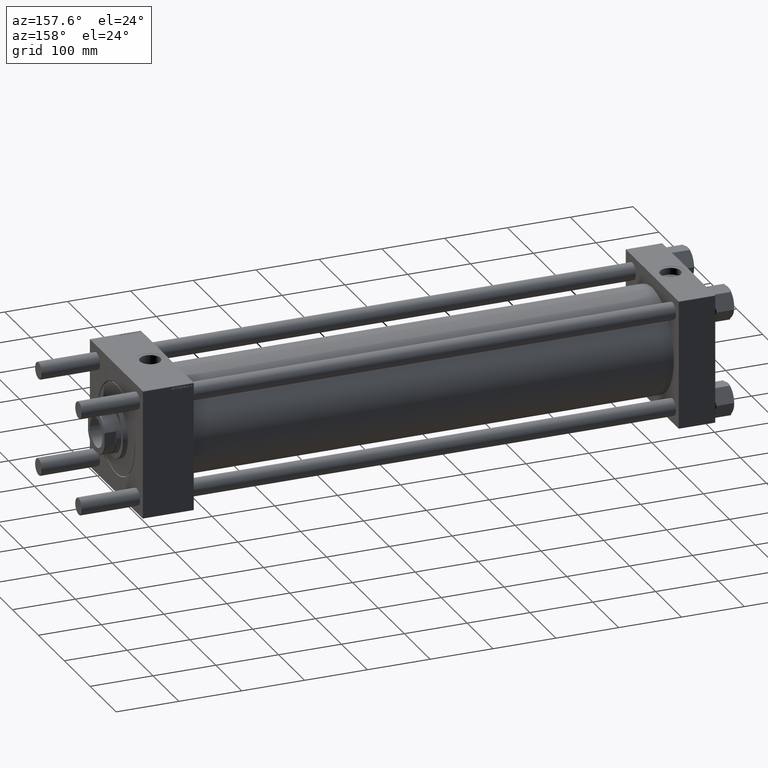
[diagram: clean part render]
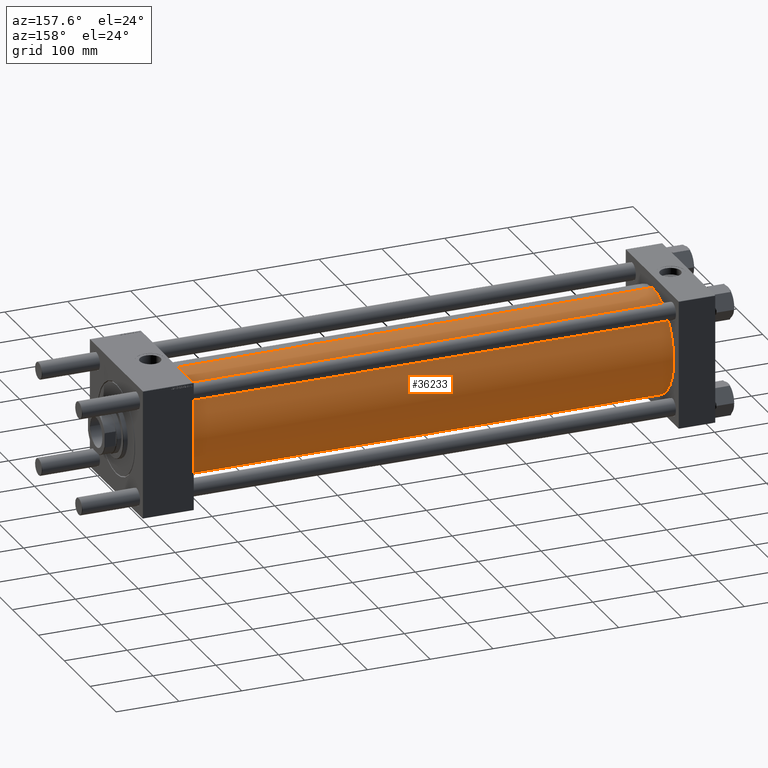
[diagram: same view with one face highlighted and labeled with its STEP entity id]
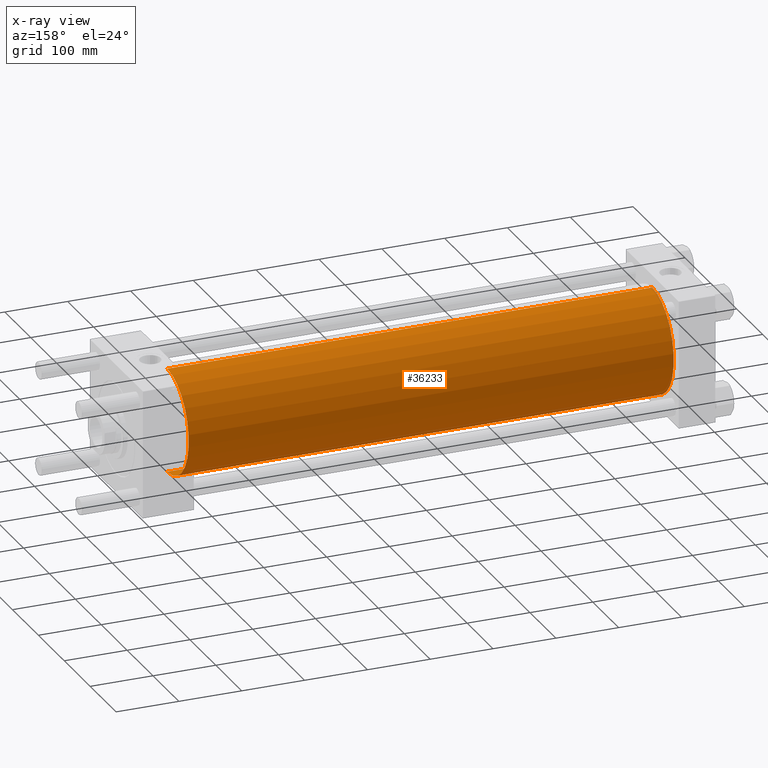
[diagram: x-ray of the same camera — body ghosted, the highlighted face saturated]
A machine part, auxiliary view. The second image highlights one B-rep face of the part: STEP entity #36233.
The next image is the same camera in x-ray: the body ghosted, the highlighted face saturated — about 0% of this face is hidden behind the body in this view.
In plain terms, the highlighted cylindrical surface (partial cylindrical patch) has radius 83 mm, axis along (-1, -0, -0).
Its self-contained STEP definition (entity closure, byte-faithful):
#930 = DIRECTION ( 'NONE',  ( -1.000000000000000000, -0.000000000000000000, -0.000000000000000000 ) ) ;
#3628 = DIRECTION ( 'NONE',  ( 0.000000000000000000, 0.000000000000000000, 1.000000000000000000 ) ) ;
#4517 = ORIENTED_EDGE ( 'NONE', *, *, #44488, .F. ) ;
#5833 = CARTESIAN_POINT ( 'NONE',  ( 830.0000000000001137, -2.602085213965210642E-15, 0.000000000000000000 ) ) ;
#6199 = DIRECTION ( 'NONE',  ( 0.000000000000000000, 0.000000000000000000, -1.000000000000000000 ) ) ;
#6823 = LINE ( 'NONE', #24494, #51117 ) ;
#8935 = ORIENTED_EDGE ( 'NONE', *, *, #55764, .T. ) ;
#11860 = VERTEX_POINT ( 'NONE', #25674 ) ;
#11996 = DIRECTION ( 'NONE',  ( 1.000000000000000000, -0.000000000000000000, -0.000000000000000000 ) ) ;
#12451 = AXIS2_PLACEMENT_3D ( 'NONE', #43273, #11996, #3628 ) ;
#14405 = EDGE_CURVE ( 'NONE', #11860, #16819, #40022, .T. ) ;
#15823 = CARTESIAN_POINT ( 'NONE',  ( 58.00000000000004974, 7.562483218957820855E-15, -83.00000000000000000 ) ) ;
#16819 = VERTEX_POINT ( 'NONE', #51982 ) ;
#17505 = DIRECTION ( 'NONE',  ( -1.000000000000000000, -0.000000000000000000, -0.000000000000000000 ) ) ;
#17568 = AXIS2_PLACEMENT_3D ( 'NONE', #5833, #930, #31336 ) ;
#18296 = CYLINDRICAL_SURFACE ( 'NONE', #17568, 83.00000000000000000 ) ;
#19245 = DIRECTION ( 'NONE',  ( 1.000000000000000000, 0.000000000000000000, 0.000000000000000000 ) ) ;
#21731 = CIRCLE ( 'NONE', #12451, 83.00000000000000000 ) ;
#22445 = AXIS2_PLACEMENT_3D ( 'NONE', #40396, #19245, #6199 ) ;
#24494 = CARTESIAN_POINT ( 'NONE',  ( 830.0000000000001137, -2.602085213965210642E-15, 83.00000000000000000 ) ) ;
#25674 = CARTESIAN_POINT ( 'NONE',  ( 830.0000000000001137, 7.562483218957820855E-15, -83.00000000000000000 ) ) ;
#27849 = FACE_OUTER_BOUND ( 'NONE', #57245, .T. ) ;
#31336 = DIRECTION ( 'NONE',  ( 0.000000000000000000, 0.000000000000000000, 1.000000000000000000 ) ) ;
#31410 = LINE ( 'NONE', #44715, #42966 ) ;
#33769 = VERTEX_POINT ( 'NONE', #15823 ) ;
#35023 = ORIENTED_EDGE ( 'NONE', *, *, #55605, .T. ) ;
#36233 = ADVANCED_FACE ( 'NONE', ( #27849 ), #18296, .T. ) ;
#39957 = ORIENTED_EDGE ( 'NONE', *, *, #14405, .F. ) ;
#40022 = CIRCLE ( 'NONE', #22445, 83.00000000000000000 ) ;
#40396 = CARTESIAN_POINT ( 'NONE',  ( 830.0000000000001137, -2.602085213965210642E-15, 0.000000000000000000 ) ) ;
#41015 = DIRECTION ( 'NONE',  ( -1.000000000000000000, -0.000000000000000000, -0.000000000000000000 ) ) ;
#42966 = VECTOR ( 'NONE', #17505, 1000.000000000000000 ) ;
#43273 = CARTESIAN_POINT ( 'NONE',  ( 58.00000000000004974, -2.602085213965210642E-15, 0.000000000000000000 ) ) ;
#44488 = EDGE_CURVE ( 'NONE', #16819, #52402, #6823, .T. ) ;
#44715 = CARTESIAN_POINT ( 'NONE',  ( 830.0000000000001137, 7.562483218957820855E-15, -83.00000000000000000 ) ) ;
#51117 = VECTOR ( 'NONE', #41015, 1000.000000000000000 ) ;
#51982 = CARTESIAN_POINT ( 'NONE',  ( 830.0000000000001137, -2.602085213965210642E-15, 83.00000000000000000 ) ) ;
#52402 = VERTEX_POINT ( 'NONE', #56974 ) ;
#55605 = EDGE_CURVE ( 'NONE', #33769, #52402, #21731, .T. ) ;
#55764 = EDGE_CURVE ( 'NONE', #11860, #33769, #31410, .T. ) ;
#56974 = CARTESIAN_POINT ( 'NONE',  ( 58.00000000000004974, -2.602085213965210642E-15, 83.00000000000000000 ) ) ;
#57245 = EDGE_LOOP ( 'NONE', ( #39957, #8935, #35023, #4517 ) ) ;